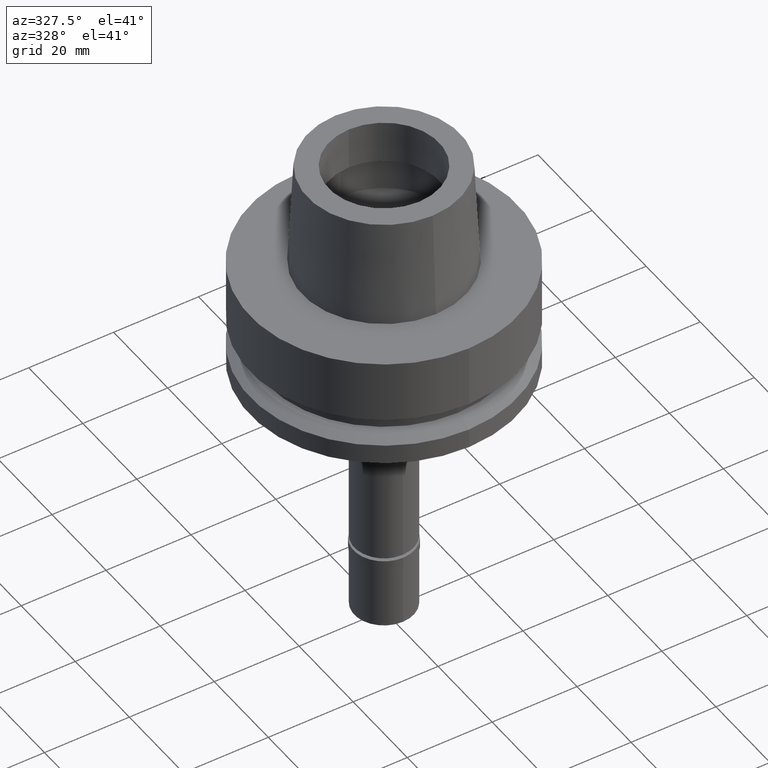
[diagram: clean part render]
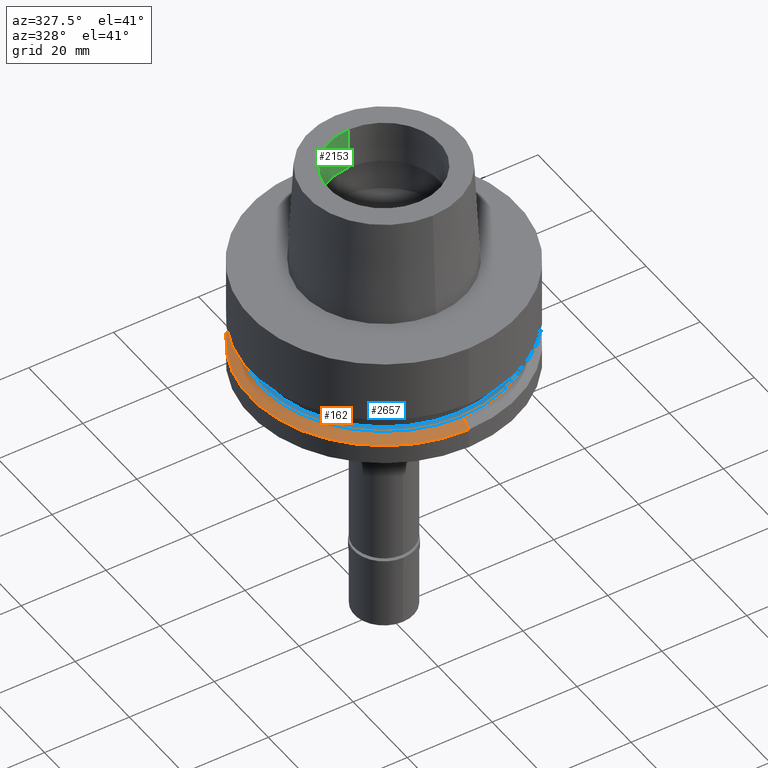
[diagram: same view with three faces highlighted in distinct colors, each labeled with its STEP entity id]
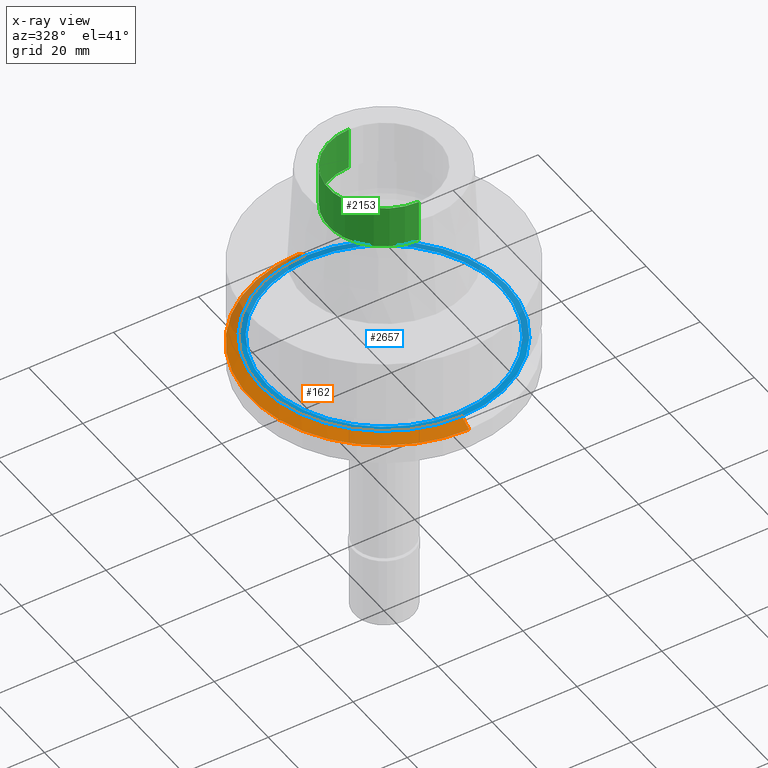
[diagram: x-ray of the same camera — body ghosted, the three highlighted faces saturated]
A machine part, auxiliary view with three faces highlighted in distinct colors.
The next image is the same camera in x-ray (body ghosted, the three faces saturated) — at least one of them is partly hidden behind the body in this view.
Their STEP definitions:

[orange] entity #162 — the highlighted conical surface has half-angle 60 deg.
#26 = CIRCLE ( 'NONE', #1164, 28.89759526419000224 ) ;
#162 = ADVANCED_FACE ( 'NONE', ( #1724 ), #1401, .T. ) ;
#192 = CARTESIAN_POINT ( 'NONE',  ( 0.0000000000000000000, -28.89759526419000224, -19.87500000000000000 ) ) ;
#218 = DIRECTION ( 'NONE',  ( 0.0000000000000000000, -1.000000000000000000, 0.0000000000000000000 ) ) ;
#242 = CARTESIAN_POINT ( 'NONE',  ( 0.0000000000000000000, 31.50000000000000000, -21.37749907476000288 ) ) ;
#412 = DIRECTION ( 'NONE',  ( 0.0000000000000000000, 0.0000000000000000000, -1.000000000000000000 ) ) ;
#580 = VERTEX_POINT ( 'NONE', #946 ) ;
#640 = DIRECTION ( 'NONE',  ( 0.0000000000000000000, -1.000000000000000000, 0.0000000000000000000 ) ) ;
#655 = AXIS2_PLACEMENT_3D ( 'NONE', #1036, #412, #2315 ) ;
#674 = EDGE_CURVE ( 'NONE', #580, #1199, #2326, .T. ) ;
#747 = VECTOR ( 'NONE', #2618, 1000.000000000000000 ) ;
#748 = VECTOR ( 'NONE', #2720, 1000.000000000000000 ) ;
#749 = CARTESIAN_POINT ( 'NONE',  ( 0.0000000000000000000, 28.89759526419000224, -19.87500000000000000 ) ) ;
#803 = ORIENTED_EDGE ( 'NONE', *, *, #674, .F. ) ;
#946 = CARTESIAN_POINT ( 'NONE',  ( 0.0000000000000000000, -31.50000000000000000, -21.37749907476000288 ) ) ;
#1036 = CARTESIAN_POINT ( 'NONE',  ( 0.0000000000000000000, 0.0000000000000000000, -21.37749907476000288 ) ) ;
#1122 = AXIS2_PLACEMENT_3D ( 'NONE', #1950, #2164, #218 ) ;
#1128 = EDGE_CURVE ( 'NONE', #2411, #1199, #2752, .T. ) ;
#1164 = AXIS2_PLACEMENT_3D ( 'NONE', #2168, #2212, #640 ) ;
#1199 = VERTEX_POINT ( 'NONE', #242 ) ;
#1401 = CONICAL_SURFACE ( 'NONE', #1122, 30.19879763209999979, 1.047197551196400456 ) ;
#1435 = ORIENTED_EDGE ( 'NONE', *, *, #1128, .T. ) ;
#1461 = CARTESIAN_POINT ( 'NONE',  ( 0.0000000000000000000, 28.89759526419000224, -19.87500000000000000 ) ) ;
#1638 = ORIENTED_EDGE ( 'NONE', *, *, #2568, .F. ) ;
#1651 = EDGE_LOOP ( 'NONE', ( #803, #1638, #1749, #1435 ) ) ;
#1724 = FACE_OUTER_BOUND ( 'NONE', #1651, .T. ) ;
#1749 = ORIENTED_EDGE ( 'NONE', *, *, #1853, .T. ) ;
#1853 = EDGE_CURVE ( 'NONE', #2583, #2411, #26, .T. ) ;
#1867 = LINE ( 'NONE', #2380, #748 ) ;
#1950 = CARTESIAN_POINT ( 'NONE',  ( 0.0000000000000000000, 0.0000000000000000000, -20.62624953738000144 ) ) ;
#2164 = DIRECTION ( 'NONE',  ( 0.0000000000000000000, 0.0000000000000000000, -1.000000000000000000 ) ) ;
#2168 = CARTESIAN_POINT ( 'NONE',  ( 0.0000000000000000000, 0.0000000000000000000, -19.87500000000000000 ) ) ;
#2212 = DIRECTION ( 'NONE',  ( 0.0000000000000000000, 0.0000000000000000000, -1.000000000000000000 ) ) ;
#2315 = DIRECTION ( 'NONE',  ( 0.0000000000000000000, -1.000000000000000000, 0.0000000000000000000 ) ) ;
#2326 = CIRCLE ( 'NONE', #655, 31.50000000000000000 ) ;
#2380 = CARTESIAN_POINT ( 'NONE',  ( 0.0000000000000000000, -28.89759526419000224, -19.87500000000000000 ) ) ;
#2411 = VERTEX_POINT ( 'NONE', #749 ) ;
#2568 = EDGE_CURVE ( 'NONE', #2583, #580, #1867, .T. ) ;
#2583 = VERTEX_POINT ( 'NONE', #192 ) ;
#2618 = DIRECTION ( 'NONE',  ( 0.0000000000000000000, 0.8660254037843856390, -0.5000000000000918154 ) ) ;
#2720 = DIRECTION ( 'NONE',  ( 0.0000000000000000000, -0.8660254037843856390, -0.5000000000000918154 ) ) ;
#2752 = LINE ( 'NONE', #1461, #747 ) ;

[blue] entity #2657 — the highlighted planar face has unit normal (0, 0, 1).
#26 = CIRCLE ( 'NONE', #1164, 28.89759526419000224 ) ;
#119 = DIRECTION ( 'NONE',  ( 0.0000000000000000000, 0.0000000000000000000, -1.000000000000000000 ) ) ;
#148 = CARTESIAN_POINT ( 'NONE',  ( 0.0000000000000000000, 0.0000000000000000000, -19.87500000000000000 ) ) ;
#192 = CARTESIAN_POINT ( 'NONE',  ( 0.0000000000000000000, -28.89759526419000224, -19.87500000000000000 ) ) ;
#305 = AXIS2_PLACEMENT_3D ( 'NONE', #2190, #2394, #2012 ) ;
#379 = CIRCLE ( 'NONE', #1281, 27.50000000000000000 ) ;
#467 = ORIENTED_EDGE ( 'NONE', *, *, #1929, .F. ) ;
#640 = DIRECTION ( 'NONE',  ( 0.0000000000000000000, -1.000000000000000000, 0.0000000000000000000 ) ) ;
#736 = CARTESIAN_POINT ( 'NONE',  ( 0.0000000000000000000, 0.0000000000000000000, -19.87500000000000000 ) ) ;
#749 = CARTESIAN_POINT ( 'NONE',  ( 0.0000000000000000000, 28.89759526419000224, -19.87500000000000000 ) ) ;
#963 = DIRECTION ( 'NONE',  ( 0.0000000000000000000, 1.000000000000000000, 0.0000000000000000000 ) ) ;
#991 = VERTEX_POINT ( 'NONE', #1049 ) ;
#1049 = CARTESIAN_POINT ( 'NONE',  ( 0.0000000000000000000, 27.50000000000000000, -19.87500000000000000 ) ) ;
#1131 = EDGE_LOOP ( 'NONE', ( #467, #1953 ) ) ;
#1141 = PLANE ( 'NONE',  #305 ) ;
#1164 = AXIS2_PLACEMENT_3D ( 'NONE', #2168, #2212, #640 ) ;
#1166 = CARTESIAN_POINT ( 'NONE',  ( 0.0000000000000000000, 0.0000000000000000000, -19.87500000000000000 ) ) ;
#1220 = ORIENTED_EDGE ( 'NONE', *, *, #1360, .F. ) ;
#1281 = AXIS2_PLACEMENT_3D ( 'NONE', #148, #2725, #1414 ) ;
#1288 = AXIS2_PLACEMENT_3D ( 'NONE', #736, #1904, #2756 ) ;
#1360 = EDGE_CURVE ( 'NONE', #991, #2345, #379, .T. ) ;
#1414 = DIRECTION ( 'NONE',  ( 0.0000000000000000000, 1.000000000000000000, 0.0000000000000000000 ) ) ;
#1756 = FACE_OUTER_BOUND ( 'NONE', #1131, .T. ) ;
#1771 = FACE_BOUND ( 'NONE', #2001, .T. ) ;
#1845 = CIRCLE ( 'NONE', #1288, 27.50000000000000000 ) ;
#1853 = EDGE_CURVE ( 'NONE', #2583, #2411, #26, .T. ) ;
#1904 = DIRECTION ( 'NONE',  ( 0.0000000000000000000, 0.0000000000000000000, 1.000000000000000000 ) ) ;
#1929 = EDGE_CURVE ( 'NONE', #2411, #2583, #2114, .T. ) ;
#1953 = ORIENTED_EDGE ( 'NONE', *, *, #1853, .F. ) ;
#2001 = EDGE_LOOP ( 'NONE', ( #1220, #2398 ) ) ;
#2012 = DIRECTION ( 'NONE',  ( 1.000000000000000000, 0.0000000000000000000, 0.0000000000000000000 ) ) ;
#2021 = EDGE_CURVE ( 'NONE', #2345, #991, #1845, .T. ) ;
#2022 = CARTESIAN_POINT ( 'NONE',  ( 0.0000000000000000000, -27.50000000000000000, -19.87500000000000000 ) ) ;
#2114 = CIRCLE ( 'NONE', #2249, 28.89759526419000224 ) ;
#2168 = CARTESIAN_POINT ( 'NONE',  ( 0.0000000000000000000, 0.0000000000000000000, -19.87500000000000000 ) ) ;
#2190 = CARTESIAN_POINT ( 'NONE',  ( 0.0000000000000000000, 0.0000000000000000000, -19.87500000000000000 ) ) ;
#2212 = DIRECTION ( 'NONE',  ( 0.0000000000000000000, 0.0000000000000000000, -1.000000000000000000 ) ) ;
#2249 = AXIS2_PLACEMENT_3D ( 'NONE', #1166, #119, #963 ) ;
#2345 = VERTEX_POINT ( 'NONE', #2022 ) ;
#2394 = DIRECTION ( 'NONE',  ( 0.0000000000000000000, 0.0000000000000000000, 1.000000000000000000 ) ) ;
#2398 = ORIENTED_EDGE ( 'NONE', *, *, #2021, .F. ) ;
#2411 = VERTEX_POINT ( 'NONE', #749 ) ;
#2583 = VERTEX_POINT ( 'NONE', #192 ) ;
#2657 = ADVANCED_FACE ( 'NONE', ( #1756, #1771 ), #1141, .T. ) ;
#2725 = DIRECTION ( 'NONE',  ( 0.0000000000000000000, 0.0000000000000000000, 1.000000000000000000 ) ) ;
#2756 = DIRECTION ( 'NONE',  ( 0.0000000000000000000, -1.000000000000000000, 0.0000000000000000000 ) ) ;

[green] entity #2153 — the highlighted cylindrical surface (partial cylindrical patch) has radius 13 mm, axis along (0, 0, 1).
#5 = DIRECTION ( 'NONE',  ( 0.0000000000000000000, -9.659541928455000240E-14, 1.000000000000000000 ) ) ;
#60 = ORIENTED_EDGE ( 'NONE', *, *, #659, .F. ) ;
#170 = CIRCLE ( 'NONE', #2706, 13.00000000000000000 ) ;
#221 = DIRECTION ( 'NONE',  ( 0.0000000000000000000, 0.0000000000000000000, 1.000000000000000000 ) ) ;
#356 = EDGE_CURVE ( 'NONE', #1153, #2679, #170, .T. ) ;
#393 = AXIS2_PLACEMENT_3D ( 'NONE', #587, #1460, #822 ) ;
#420 = CARTESIAN_POINT ( 'NONE',  ( 0.0000000000000000000, -13.00000000000000000, 14.99602540378000093 ) ) ;
#446 = DIRECTION ( 'NONE',  ( 0.0000000000000000000, 1.000000000000000000, 0.0000000000000000000 ) ) ;
#498 = CARTESIAN_POINT ( 'NONE',  ( 0.0000000000000000000, 13.00000000000000000, 25.00000000000000000 ) ) ;
#587 = CARTESIAN_POINT ( 'NONE',  ( 0.0000000000000000000, 0.0000000000000000000, 14.99602540378000093 ) ) ;
#604 = DIRECTION ( 'NONE',  ( 0.0000000000000000000, 9.659541928455000240E-14, 1.000000000000000000 ) ) ;
#657 = EDGE_CURVE ( 'NONE', #1576, #2705, #755, .T. ) ;
#659 = EDGE_CURVE ( 'NONE', #1576, #2679, #1011, .T. ) ;
#686 = ORIENTED_EDGE ( 'NONE', *, *, #2134, .T. ) ;
#693 = ORIENTED_EDGE ( 'NONE', *, *, #657, .T. ) ;
#755 = CIRCLE ( 'NONE', #393, 13.00000000000000000 ) ;
#822 = DIRECTION ( 'NONE',  ( 0.0000000000000000000, -1.000000000000000000, 0.0000000000000000000 ) ) ;
#883 = CARTESIAN_POINT ( 'NONE',  ( 0.0000000000000000000, -13.00000000000000000, 25.00000000000000000 ) ) ;
#1011 = LINE ( 'NONE', #2346, #1248 ) ;
#1153 = VERTEX_POINT ( 'NONE', #498 ) ;
#1243 = AXIS2_PLACEMENT_3D ( 'NONE', #1969, #221, #2354 ) ;
#1248 = VECTOR ( 'NONE', #604, 1000.000000000000000 ) ;
#1270 = CYLINDRICAL_SURFACE ( 'NONE', #1243, 13.00000000000000000 ) ;
#1460 = DIRECTION ( 'NONE',  ( 0.0000000000000000000, 0.0000000000000000000, -1.000000000000000000 ) ) ;
#1488 = FACE_OUTER_BOUND ( 'NONE', #2403, .T. ) ;
#1526 = DIRECTION ( 'NONE',  ( 0.0000000000000000000, 0.0000000000000000000, 1.000000000000000000 ) ) ;
#1576 = VERTEX_POINT ( 'NONE', #420 ) ;
#1601 = CARTESIAN_POINT ( 'NONE',  ( 0.0000000000000000000, 13.00000000000000000, 14.99602540378000093 ) ) ;
#1699 = LINE ( 'NONE', #1939, #1701 ) ;
#1701 = VECTOR ( 'NONE', #5, 1000.000000000000000 ) ;
#1939 = CARTESIAN_POINT ( 'NONE',  ( 0.0000000000000000000, 13.00000000000000000, 14.99602540378000093 ) ) ;
#1969 = CARTESIAN_POINT ( 'NONE',  ( 0.0000000000000000000, 0.0000000000000000000, -91.55000000000001137 ) ) ;
#2134 = EDGE_CURVE ( 'NONE', #2705, #1153, #1699, .T. ) ;
#2153 = ADVANCED_FACE ( 'NONE', ( #1488 ), #1270, .F. ) ;
#2207 = ORIENTED_EDGE ( 'NONE', *, *, #356, .T. ) ;
#2346 = CARTESIAN_POINT ( 'NONE',  ( 0.0000000000000000000, -13.00000000000000000, 14.99602540378000093 ) ) ;
#2354 = DIRECTION ( 'NONE',  ( 0.0000000000000000000, 1.000000000000000000, 0.0000000000000000000 ) ) ;
#2403 = EDGE_LOOP ( 'NONE', ( #2207, #60, #693, #686 ) ) ;
#2609 = CARTESIAN_POINT ( 'NONE',  ( 0.0000000000000000000, 0.0000000000000000000, 25.00000000000000000 ) ) ;
#2679 = VERTEX_POINT ( 'NONE', #883 ) ;
#2705 = VERTEX_POINT ( 'NONE', #1601 ) ;
#2706 = AXIS2_PLACEMENT_3D ( 'NONE', #2609, #1526, #446 ) ;